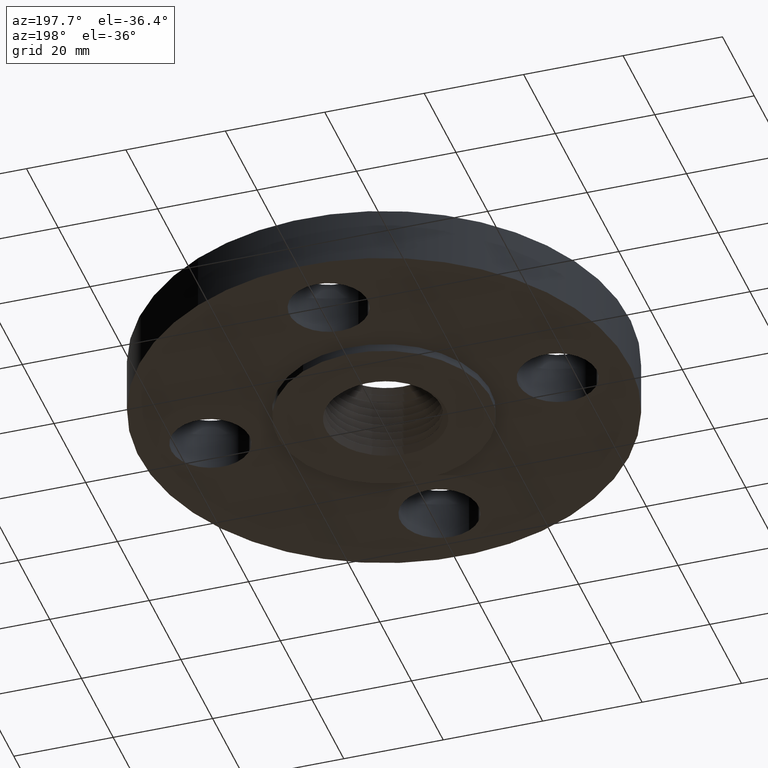
[diagram: clean part render]
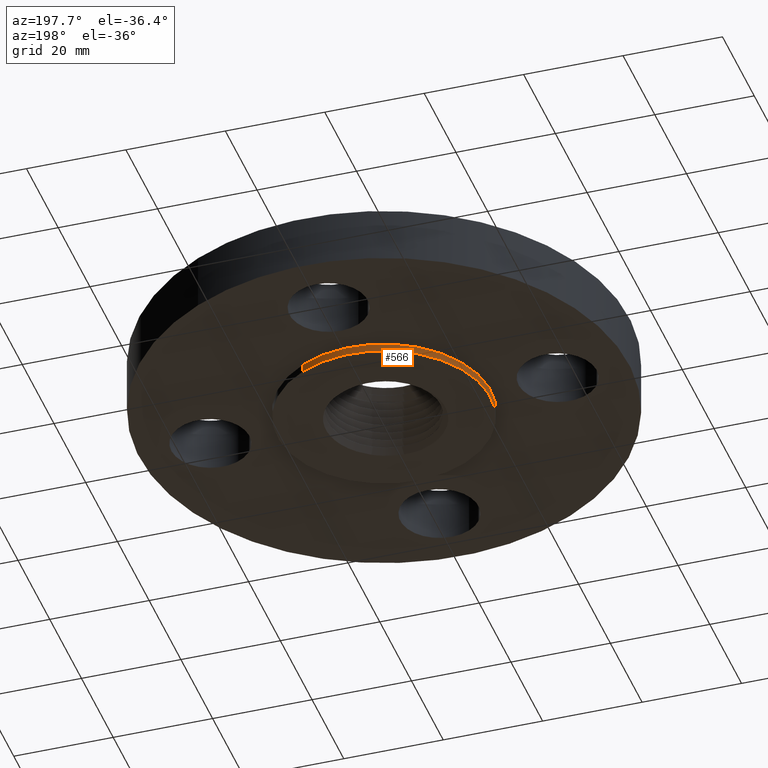
[diagram: same view with one face highlighted and labeled with its STEP entity id]
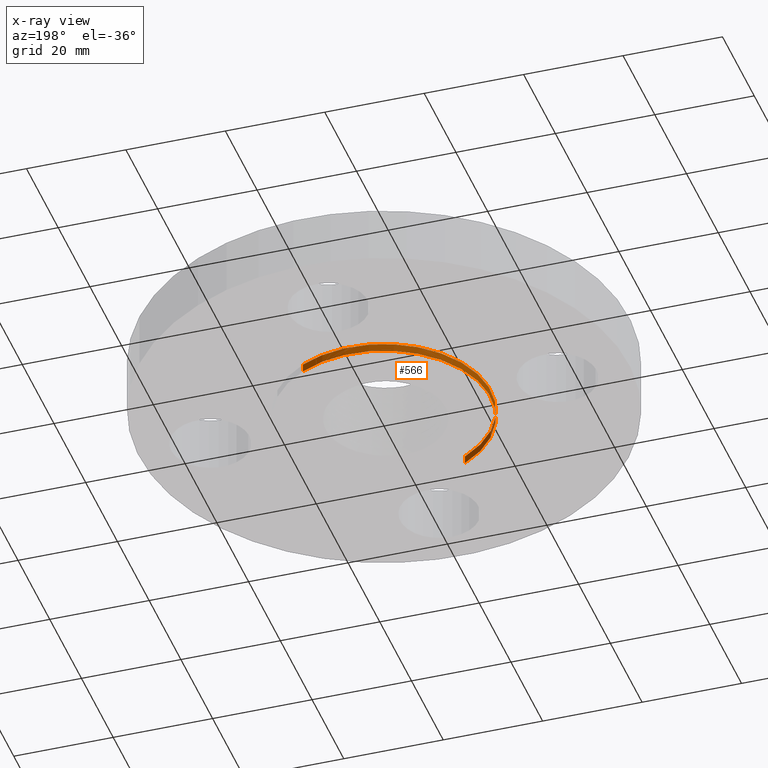
[diagram: x-ray of the same camera — body ghosted, the highlighted face saturated]
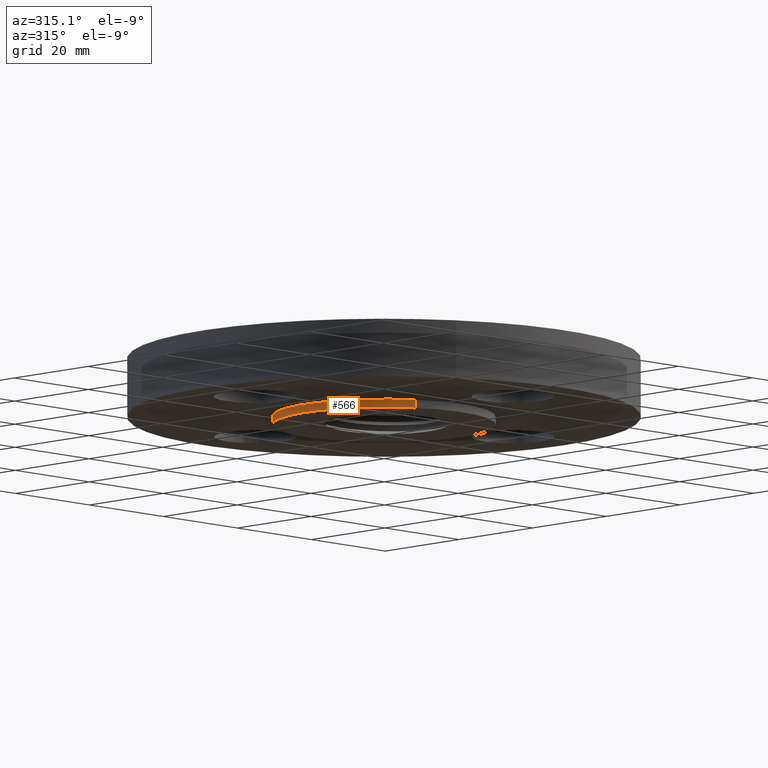
[diagram: same view with one face highlighted and labeled with its STEP entity id]
A machine part, auxiliary view. The second image highlights one B-rep face of the part: STEP entity #566.
The next image is the same camera in x-ray: the body ghosted, the highlighted face saturated — about 0% of this face is hidden behind the body in this view.
A second angle (auxiliary view) of the same face is appended — the face is thin or edge-on in the first view.
In plain terms, the highlighted cylindrical surface (partial cylindrical patch) has radius 21.463 mm, axis along (0, 0, -1).
Its self-contained STEP definition (entity closure, byte-faithful):
#51=AXIS2_PLACEMENT_3D('Circle Axis2P3D',#49,#50,$) ;
#518=AXIS2_PLACEMENT_3D('Circle Axis2P3D',#516,#517,$) ;
#541=AXIS2_PLACEMENT_3D('Cylinder Axis2P3D',#538,#539,#540) ;
#44=CARTESIAN_POINT('Vertex',(0.405114580122,0.7415572648,-0.0625000000002)) ;
#46=CARTESIAN_POINT('Vertex',(-0.405114580122,-0.7415572648,-0.0625000000002)) ;
#49=CARTESIAN_POINT('Axis2P3D Location',(0.,0.,-0.0625000000003)) ;
#511=CARTESIAN_POINT('Vertex',(0.405114580122,0.7415572648,1.39870617276E-016)) ;
#513=CARTESIAN_POINT('Vertex',(-0.405114580122,-0.7415572648,1.39870617276E-016)) ;
#516=CARTESIAN_POINT('Axis2P3D Location',(0.,0.,0.)) ;
#538=CARTESIAN_POINT('Axis2P3D Location',(0.,0.,0.248750000001)) ;
#543=CARTESIAN_POINT('Line Origine',(0.405114580122,0.7415572648,-0.0312500000001)) ;
#548=CARTESIAN_POINT('Line Origine',(-0.405114580122,-0.7415572648,-0.0312500000001)) ;
#50=DIRECTION('Axis2P3D Direction',(0.,0.,-0.0393700787402)) ;
#517=DIRECTION('Axis2P3D Direction',(0.,0.,-0.0393700787402)) ;
#539=DIRECTION('Axis2P3D Direction',(0.,0.,-0.0393700787402)) ;
#540=DIRECTION('Axis2P3D XDirection',(-0.0188750212049,-0.0345504945626,0.)) ;
#544=DIRECTION('Vector Direction',(0.,0.,-0.0393700787402)) ;
#549=DIRECTION('Vector Direction',(0.,0.,-0.0393700787402)) ;
#545=VECTOR('Line Direction',#544,0.0393700787402) ;
#550=VECTOR('Line Direction',#549,0.0393700787402) ;
#561=ORIENTED_EDGE('',*,*,#53,.F.) ;
#562=ORIENTED_EDGE('',*,*,#552,.T.) ;
#563=ORIENTED_EDGE('',*,*,#520,.T.) ;
#564=ORIENTED_EDGE('',*,*,#547,.F.) ;
#566=ADVANCED_FACE('PartBody',(#565),#542,.T.) ;
#52=CIRCLE('generated circle',#51,0.845000000003) ;
#519=CIRCLE('generated circle',#518,0.845000000003) ;
#542=CYLINDRICAL_SURFACE('generated cylinder',#541,0.845000000003) ;
#53=EDGE_CURVE('',#47,#45,#52,.T.) ;
#520=EDGE_CURVE('',#514,#512,#519,.T.) ;
#547=EDGE_CURVE('',#45,#512,#546,.F.) ;
#552=EDGE_CURVE('',#47,#514,#551,.F.) ;
#560=EDGE_LOOP('',(#561,#562,#563,#564)) ;
#565=FACE_OUTER_BOUND('',#560,.T.) ;
#546=LINE('Line',#543,#545) ;
#551=LINE('Line',#548,#550) ;
#45=VERTEX_POINT('',#44) ;
#47=VERTEX_POINT('',#46) ;
#512=VERTEX_POINT('',#511) ;
#514=VERTEX_POINT('',#513) ;